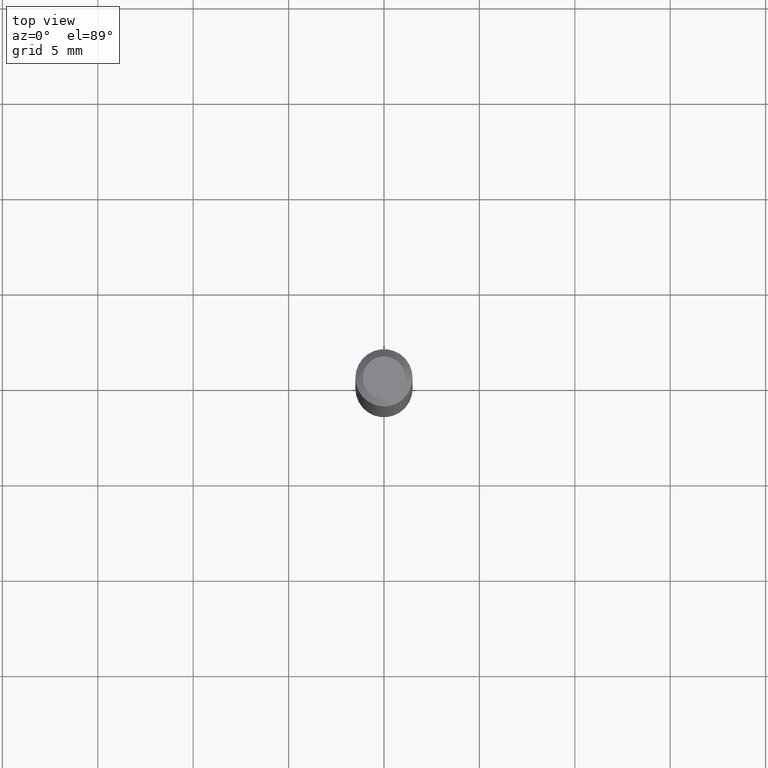
[diagram: clean part render]
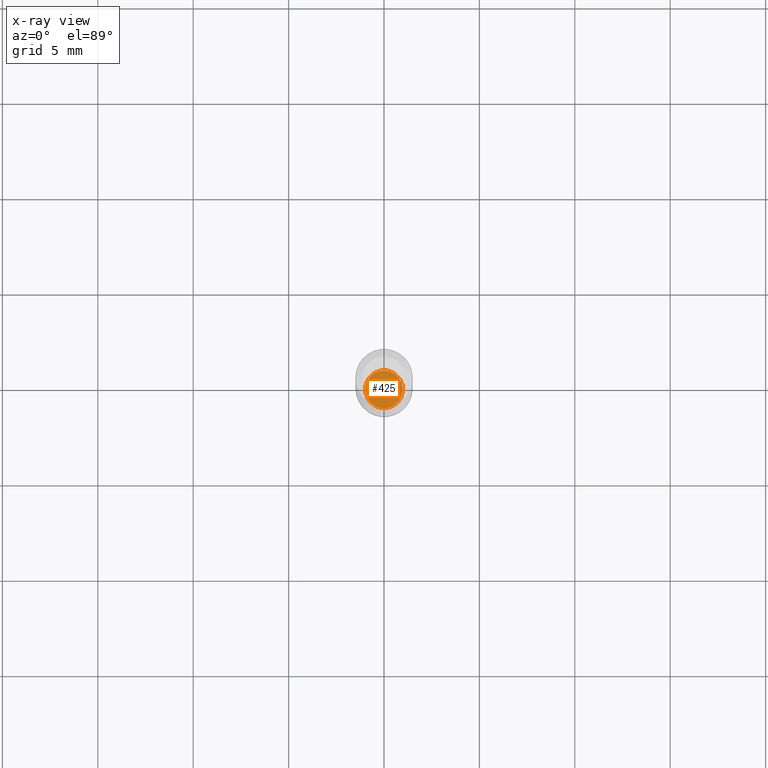
[diagram: x-ray — body ghosted, one internal face saturated and labeled with its STEP entity id]
A machine part, top view, then the same camera in x-ray: the body is ghosted and one INTERNAL B-rep face — a face not visible from any outside direction — is saturated and labeled: STEP entity #425.
In plain terms, the highlighted planar face has unit normal (-0, 0, 1).
Its self-contained STEP definition (entity closure, byte-faithful):
#18 = DIRECTION ( 'NONE',  ( 1.000000000000000000, -6.982962677686256455E-15, 0.000000000000000000 ) ) ;
#25 = DIRECTION ( 'NONE',  ( -2.445468806185136597E-29, 3.491481338843145583E-15, 1.000000000000000000 ) ) ;
#45 = ORIENTED_EDGE ( 'NONE', *, *, #66, .F. ) ;
#66 = EDGE_CURVE ( 'NONE', #430, #106, #213, .T. ) ;
#99 = AXIS2_PLACEMENT_3D ( 'NONE', #315, #395, #157 ) ;
#106 = VERTEX_POINT ( 'NONE', #229 ) ;
#143 = CARTESIAN_POINT ( 'NONE',  ( 3.379393343267239894E-29, -4.824878062147343257E-15, -1.381900000000000128 ) ) ;
#157 = DIRECTION ( 'NONE',  ( 1.000000000000000000, -6.982962677686256455E-15, 0.000000000000000000 ) ) ;
#191 = CARTESIAN_POINT ( 'NONE',  ( 3.379393343267239894E-29, -4.824878062147343257E-15, -1.381900000000000128 ) ) ;
#192 = EDGE_CURVE ( 'NONE', #106, #430, #325, .T. ) ;
#213 = CIRCLE ( 'NONE', #99, 0.03885000000000000259 ) ;
#216 = EDGE_LOOP ( 'NONE', ( #403, #45 ) ) ;
#229 = CARTESIAN_POINT ( 'NONE',  ( 0.03885000000000000259, -5.096166162175454377E-15, -1.381900000000000128 ) ) ;
#240 = DIRECTION ( 'NONE',  ( 1.000000000000000000, -6.982962677686265922E-15, 4.876176775795935793E-29 ) ) ;
#263 = AXIS2_PLACEMENT_3D ( 'NONE', #191, #25, #18 ) ;
#272 = DIRECTION ( 'NONE',  ( -2.438088387897960049E-29, 3.491481338843145188E-15, 1.000000000000000000 ) ) ;
#315 = CARTESIAN_POINT ( 'NONE',  ( 3.379393343267239894E-29, -4.824878062147343257E-15, -1.381900000000000128 ) ) ;
#325 = CIRCLE ( 'NONE', #263, 0.03885000000000000259 ) ;
#347 = CARTESIAN_POINT ( 'NONE',  ( -0.03885000000000000259, -4.546182982130432770E-15, -1.381900000000000128 ) ) ;
#395 = DIRECTION ( 'NONE',  ( -2.445468806185136597E-29, 3.491481338843145583E-15, 1.000000000000000000 ) ) ;
#396 = FACE_OUTER_BOUND ( 'NONE', #216, .T. ) ;
#403 = ORIENTED_EDGE ( 'NONE', *, *, #192, .F. ) ;
#425 = ADVANCED_FACE ( 'NONE', ( #396 ), #453, .F. ) ;
#430 = VERTEX_POINT ( 'NONE', #347 ) ;
#448 = AXIS2_PLACEMENT_3D ( 'NONE', #143, #272, #240 ) ;
#453 = PLANE ( 'NONE',  #448 ) ;